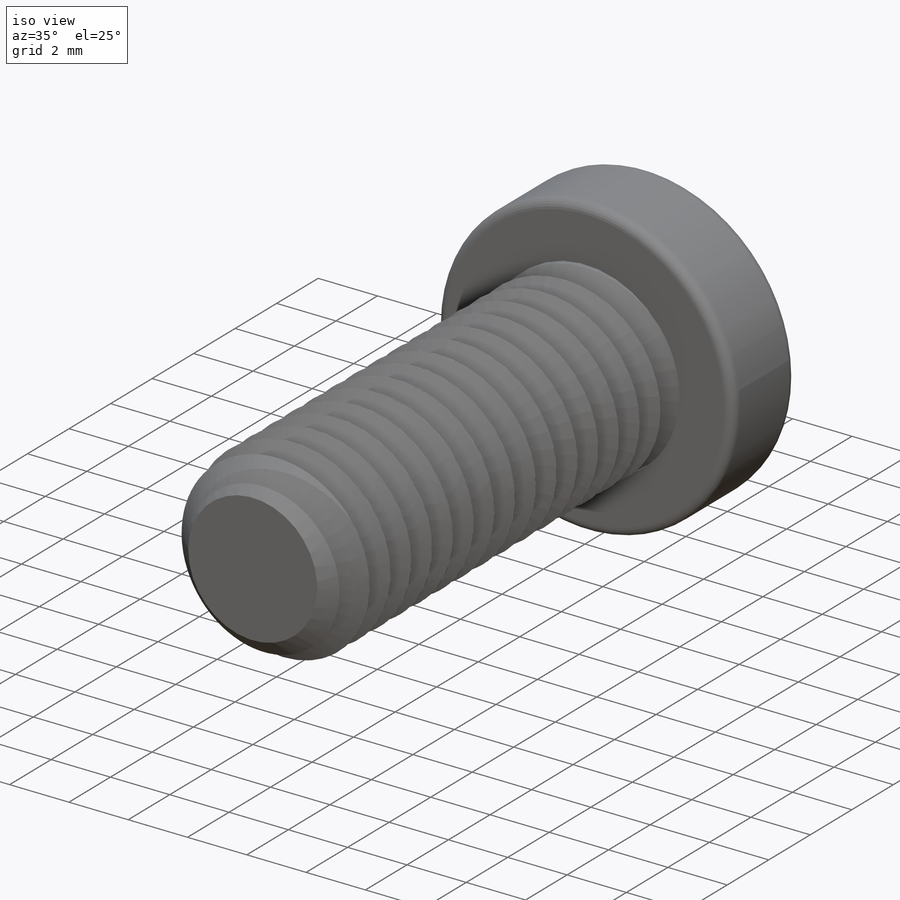
[diagram: iso view]
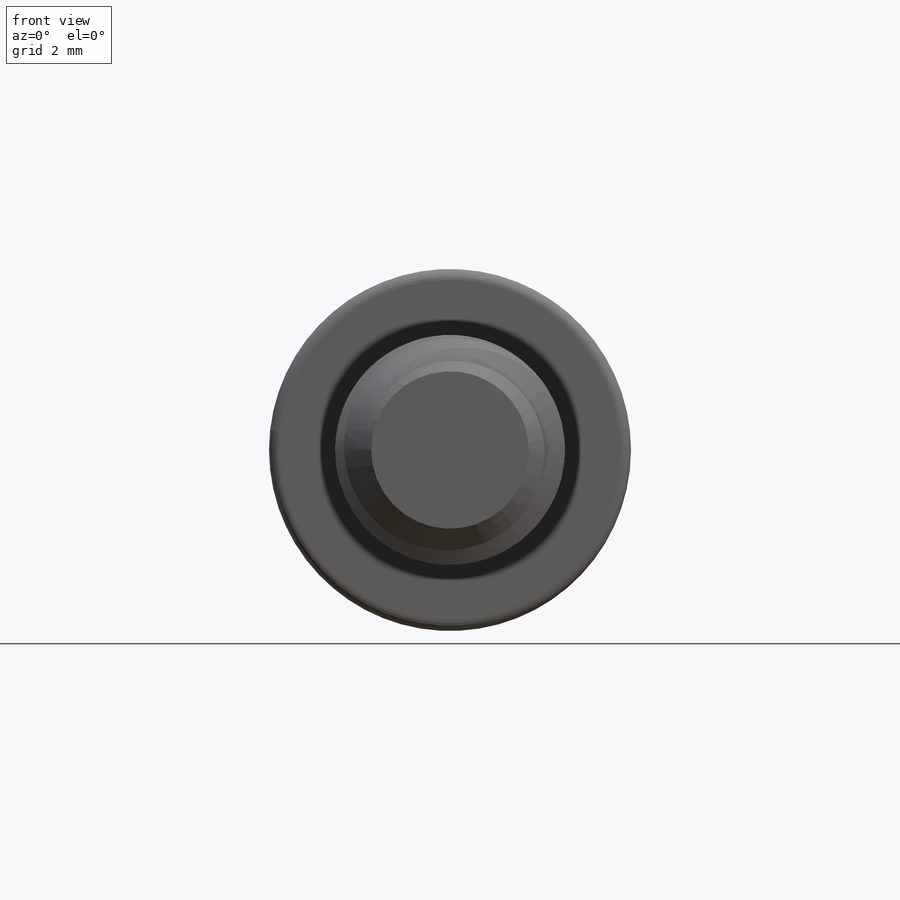
[diagram: front view]
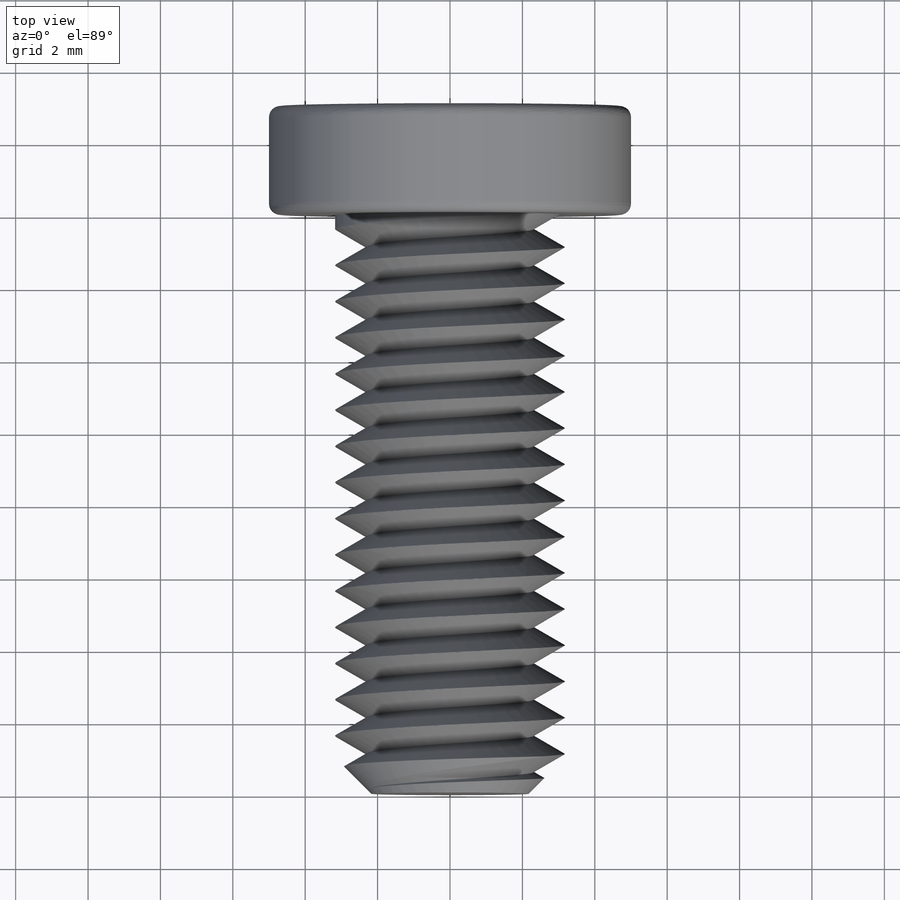
[diagram: top view]
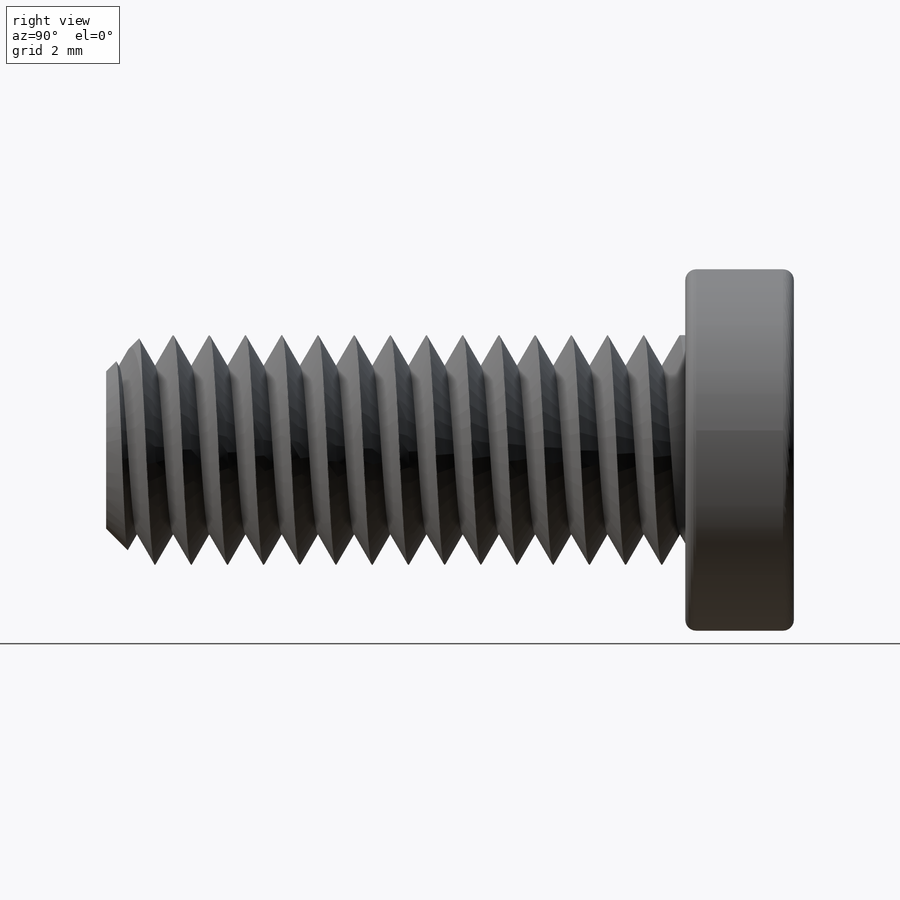
[diagram: right view]
SOLIDWORKS PART (.sldprt)
format: sldprt  version: not decoded by parser v0  size: 621,056 bytes
history: native  units: mm
features: sketch x5, plane x4, fillet x3, extrude x2, chamfer x2, material x1, helix x1, sweep x1, cut_extrude x1 (+13 scaffold rows collapsed)
feature tree (33):
  scaffold x13  (default folders/planes/origin — collapsed)
  material  "Material <not specified>"
  plane  "Alzado"
  plane  "Planta"
  plane  "Vista lateral"
  sketch  "Croquis1"  dims[D1=~16.644316mm]
  extrude  "Saliente-Extruir1"  Depth=16mm
  sketch  "Croquis2"  dims[D1=~5.67315mm]
  extrude  "Saliente-Extruir2"  Depth=3mm
  chamfer  "Chaflán1"  Distance=1mm Angle=45deg
  sketch  "Croquis3"
  helix  "Hélice/Espiral1"  Pitch=16mm
  plane  "Plano1"  Offset=0mm
  sketch  "Croquis4"  dims[c1.D1=0.5mm c1.D2=0.5mm c1.D3=0.5mm c2.D3=60.0deg c2.D4=0.5mm c3.D4=60.0deg]
  sweep  "Cortar-Barrer1"
  sketch  "Croquis5"
  cut_extrude  "Cortar-Extruir1"  Depth=2mm
  chamfer  "Chamfer1"  Distance=0.2mm Angle=45deg
  fillet  "Fillet1"  Radius=0.3mm
  fillet  "Fillet2"  Radius=0.1mm
  fillet  "Fillet3"  Radius=0.3mm
decode coverage: 12 of 15 modeling features carry decoded parameters
note: ~ marks probable driven/reference dimensions
note: suppression state not decoded; provenance and decode notes live in map.json
